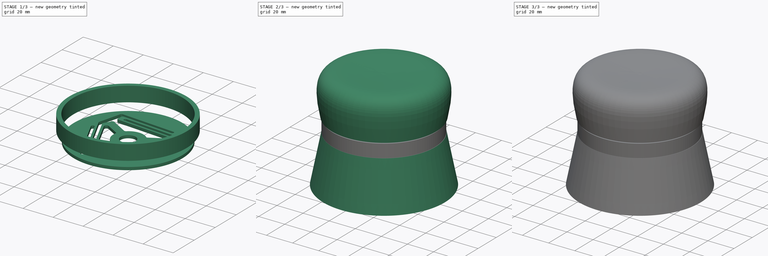
[diagram: build sequence overview — one tinted view per stage of 3, left to right]
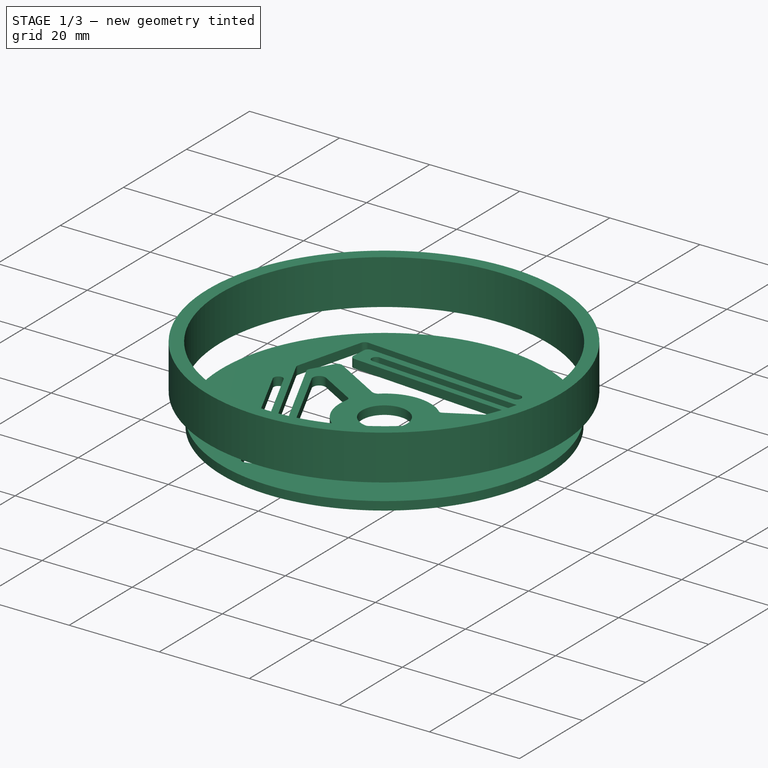
[diagram: stage 1 of 3 — iso view after this stage's code; geometry added in this stage tinted green]
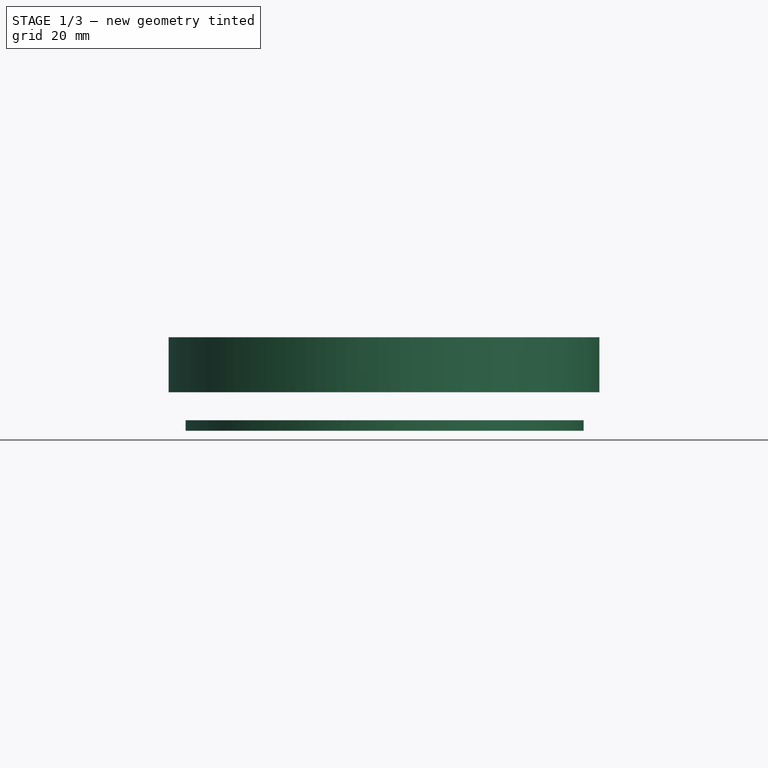
[diagram: stage 1 of 3 — front view after this stage's code; geometry added in this stage tinted green]
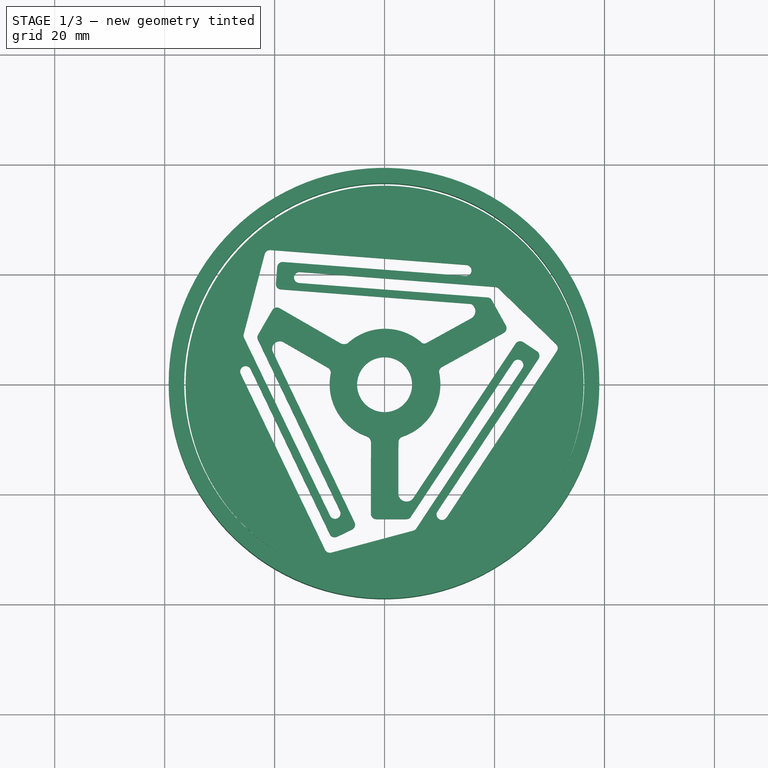
[diagram: stage 1 of 3 — top view after this stage's code; geometry added in this stage tinted green]
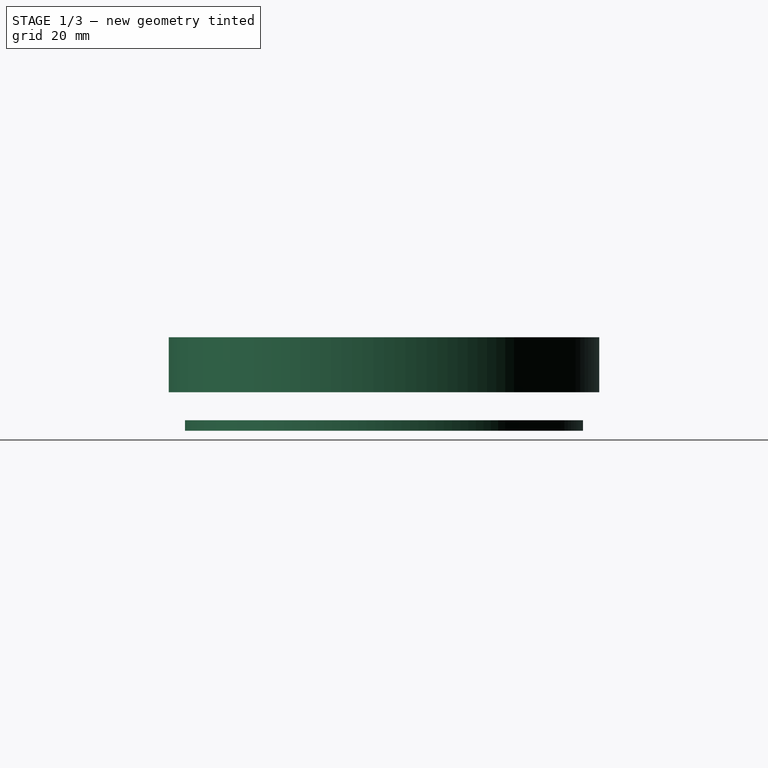
[diagram: stage 1 of 3 — right view after this stage's code; geometry added in this stage tinted green]
FCSTD DOCUMENT  (FreeCAD 0.19R24291 (Git))
Label: dimmer
License: All rights reserved
LicenseURL: http://en.wikipedia.org/wiki/All_rights_reserved
objects: Sketcher::SketchObject×6, Part::Feature×5, App::Part×5, PartDesign::Revolution×2, PartDesign::Pad×2, PartDesign::Body×2, PartDesign::Pocket×1, Part::FeaturePython×1
note: 24 computed .brp shape members not serialized (recipe doc carries the construction recipe); baked Part::Feature solids carry a one-line shape summary decoded from their .brp

FEATURE [PartDesign::Body] Body
  Group = -> [Sketch,Revolution,Sketch001,Pad,Sketch002,Pocket]
  Origin = -> Origin
  Tip = -> Pocket
FEATURE [Sketcher::SketchObject] Sketch003
  AttachmentOffset = pos=(0,0,-1) rot=(0,0,1;0rad)
  FullyConstrained = false
  MapMode = 5
  Placement = pos=(0,0,-1) rot=(0,0,1;0rad)
  Support = -> [XY_Plane001]
  sketch-geometry (2):
    g0: Circle CenterX=-0.073156 CenterY=0 CenterZ=0 NormalX=0 NormalY=0 NormalZ=1 AngleXU=0 Radius=36.3817
    g1: Circle CenterX=-0.106575 CenterY=0 CenterZ=0 NormalX=0 NormalY=0 NormalZ=1 AngleXU=0 Radius=39.1694
  constraints (2):
    c: PointOnObject(g0,g-1)
    c: PointOnObject(g1,g-1)
FEATURE [PartDesign::Pad] Pad001
  Direction = (1,1,1)
  Length = 10
  Length2 = 100
  Profile = -> Sketch003
  Refine = true
  Reversed = true
  Type = 0
FEATURE [PartDesign::Body] Body001
  Group = -> [Sketch003,Pad001,Sketch004,Sketch005,Revolution001]
  Origin = -> Origin001
  Tip = -> Revolution001
FEATURE [Part::FeaturePython] Clone  label="Orthoplanar_Spring001 (Solid)002"  # WARN: FeaturePython — macro-defined, semantics opaque (R4)
  AttacherType = Attacher::AttachEngine3D
  Fuse = false
  Placement = pos=(0,0,-18) rot=(0,0,1;0rad)
  Scale = (0.5,0.5,0.5)
FEATURE [Part::Feature] Part__Feature  label="COMPOUND"
  shape: bbox 14.4 x 14.58 x 18.62 mm, 223 faces, 5 solids (baked)
FEATURE [App::Part] EC12_Encoder_10mm_3pin  label="EC12 Encoder 10mm 3pin"
  Group = -> [Part__Feature]
  Origin = -> Origin002
  Placement = pos=(-0.24,-0.44,1.05) rot=(0,0,-1;1.5708rad)
FEATURE [Part::Feature] Part__Feature001  label="COMPOUND001"
  shape: bbox 4.815 x 2.215 x 4.115 mm, 246 faces, 5 solids (baked)
FEATURE [App::Part] SKRKAHE020__3DModel_STEP_56544  label="SKRKAHE020--3DModel-STEP-56544"
  Group = -> [Part__Feature001]
  Origin = -> Origin003
  Placement = pos=(16.47,-20.13,1.05) rot=(0.57735,0.57735,0.57735;2.0944rad)
FEATURE [Part::Feature] Part__Feature002  label="COMPOUND002"
  shape: bbox 8.99 x 4.35 x 7.955 mm, 689 faces, 42 solids (baked)
FEATURE [App::Part] TYPE_C_31_M_12  label="TYPE-C-31-M-12"
  Group = -> [Part__Feature002]
  Origin = -> Origin004
  Placement = pos=(-0.8,-32.05,1.05) rot=(1,0,0;1.5708rad)
FEATURE [Part::Feature] Part__Feature003  label="COMPOUND003"
  shape: bbox 4.815 x 2.215 x 4.115 mm, 246 faces, 5 solids (baked)
FEATURE [App::Part] SKRKAHE020__3DModel_STEP_56544001  label="SKRKAHE020--3DModel-STEP-56545"
  Group = -> [Part__Feature003]
  Origin = -> Origin005
  Placement = pos=(-10.084,-28.778,1.05) rot=(1,0,0;1.5708rad)
FEATURE [Part::Feature] Part__Feature004  label="PCB PCB"
  shape: bbox 68 x 68 x 1 mm, 50 faces (baked)
FEATURE [App::Part] PCB_1  label="PCB 1"
  Group = -> [EC12_Encoder_10mm_3pin,SKRKAHE020__3DModel_STEP_56544,TYPE_C_31_M_12,SKRKAHE020__3DModel_STEP_56544001,Part__Feature004]
  Origin = -> Origin006
  Placement = pos=(0,0,-13) rot=(0,0,1;0rad)
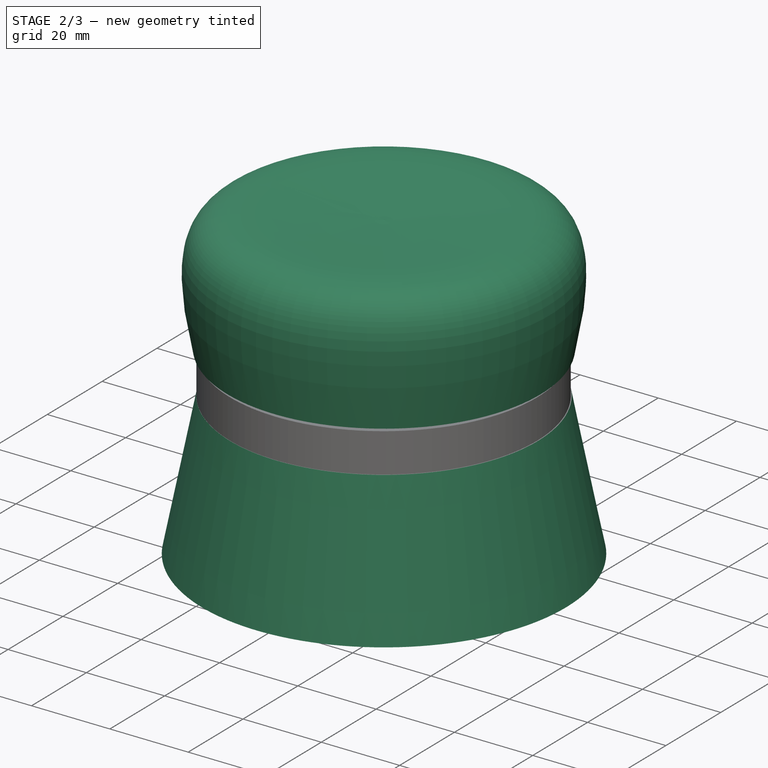
[diagram: stage 2 of 3 — iso view after this stage's code; geometry added in this stage tinted green]
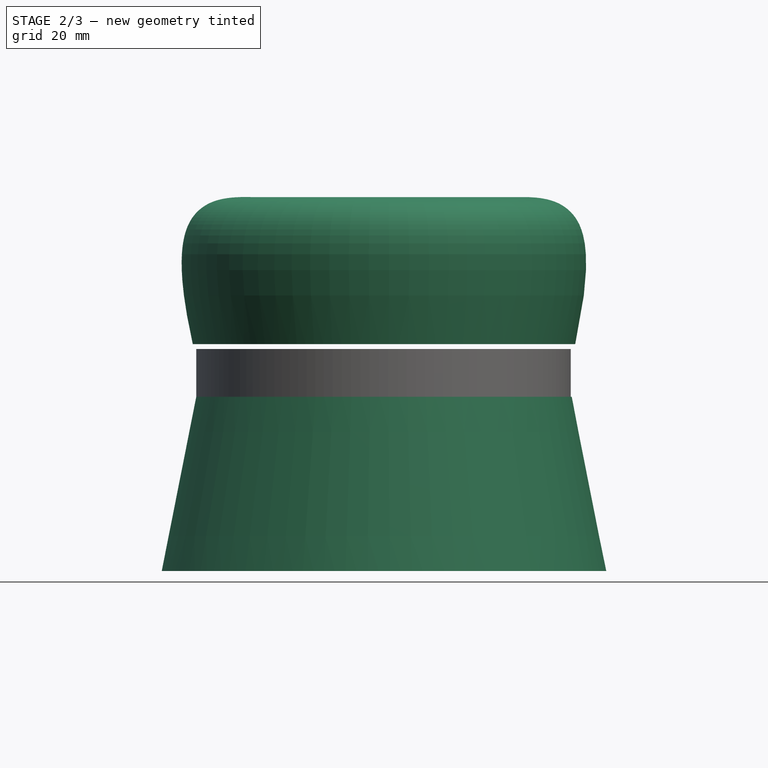
[diagram: stage 2 of 3 — front view after this stage's code; geometry added in this stage tinted green]
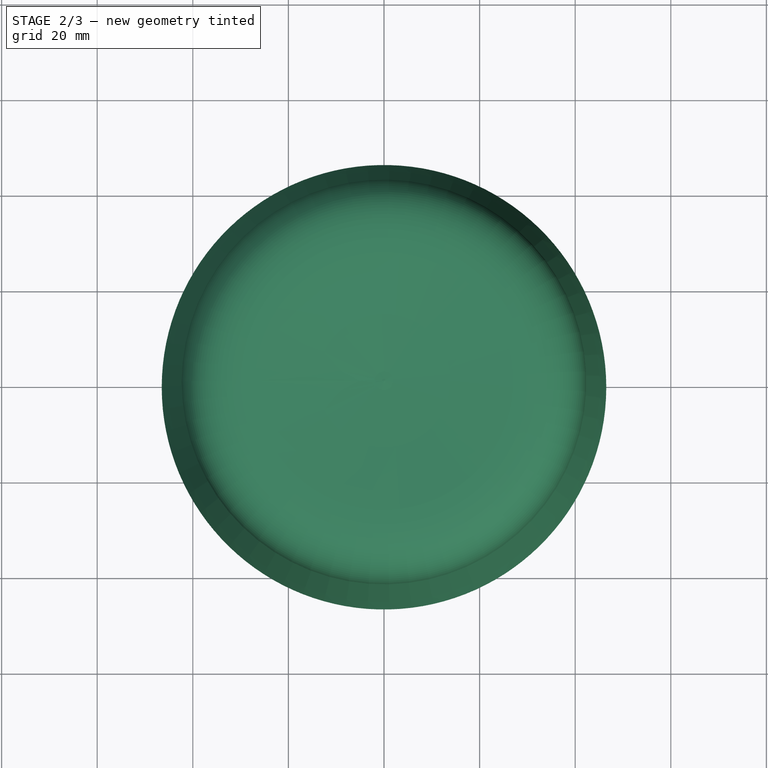
[diagram: stage 2 of 3 — top view after this stage's code; geometry added in this stage tinted green]
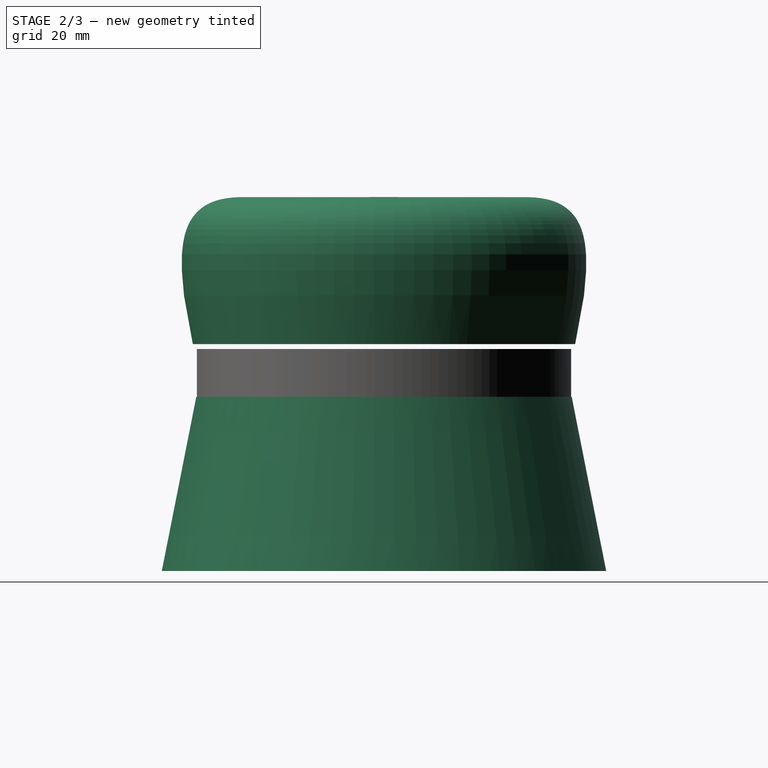
[diagram: stage 2 of 3 — right view after this stage's code; geometry added in this stage tinted green]
FEATURE [Sketcher::SketchObject] Sketch
  FullyConstrained = false
  MapMode = 5
  Placement = pos=(0,0,0) rot=(1,0,0;1.5708rad)
  Support = -> [XZ_Plane]
  sketch-geometry (26):
    g0: LineSegment StartX=0 StartY=29.5694 StartZ=0 EndX=0 EndY=26.5694 EndZ=0
    g1: LineSegment StartX=-40 StartY=0 StartZ=0 EndX=-37 EndY=0 EndZ=0
    g2-g7: Circle x6 (B-spline internal-alignment scaffolding for g8; pole/knot coordinates omitted)
    g8: BSplineCurve PolesCount=6 KnotsCount=4 Degree=3 IsPeriodic=0
    g9-g12: GeomPoint x4 (B-spline internal-alignment scaffolding for g8; pole/knot coordinates omitted)
    g13-g19: Circle x7 (B-spline internal-alignment scaffolding for g20; pole/knot coordinates omitted)
    g20: BSplineCurve PolesCount=7 KnotsCount=5 Degree=3 IsPeriodic=0
    g21-g25: GeomPoint x5 (B-spline internal-alignment scaffolding for g20; pole/knot coordinates omitted)
  constraints (18):
    c: PointOnObject(g1,g-1)
    c: PointOnObject(g0,g-2)
    c: Vertical(g0)
    c: Horizontal(g1)
    c: DistanceX(g1,g1) = 3
    c: DistanceY(g0,g0) = 3
    c: Weight(g2) = 1
    c: Equal(g2, g3-g7) x5
    c: InternalAlignment(g2-g7 -> g8) x6
    c: InternalAlignment(g9-g12 -> g8) x4
    c: Weight(g13) = 1
    c: Equal(g13, g14-g18) x5
    c: Coincident(g18,g0)
    c: Equal(g13,g19)
    c: Coincident(g20,g0)
    c: InternalAlignment(g13-g19 -> g20) x7
    c: InternalAlignment(g21-g25 -> g20) x5
    c: Coincident(g8,g0)
FEATURE [PartDesign::Revolution] Revolution
  Angle = 360
  Axis = (0,2e-16,1)
  Base = (0,0,0)
  Placement = pos=(0,0,0) rot=(1,0,0;1.5708rad)
  Profile = -> Sketch
  ReferenceAxis = -> Sketch [V_Axis]
  Refine = true
FEATURE [Sketcher::SketchObject] Sketch004
  FullyConstrained = true
  MapMode = 5
  Placement = pos=(0,0,-11) rot=(1,0,0;3.14159rad)
  Support = -> [Pad001]
FEATURE [Sketcher::SketchObject] Sketch005
  ExternalGeometry = -> [Pad001]
  FullyConstrained = false
  MapMode = 5
  Placement = pos=(0,0,0) rot=(1,0,0;1.5708rad)
  Support = -> [XZ_Plane001]
  sketch-geometry (4):
    g0: LineSegment StartX=-39.276 StartY=-11 StartZ=0 EndX=-46.4985 EndY=-47.4562 EndZ=0
    g1: LineSegment StartX=-46.4985 StartY=-47.4562 StartZ=0 EndX=-43.6774 EndY=-47.4562 EndZ=0
    g2: LineSegment StartX=-43.6774 StartY=-47.4562 StartZ=0 EndX=-36.4549 EndY=-11 EndZ=0
    g3: LineSegment StartX=-39.276 StartY=-11 StartZ=0 EndX=-36.4549 EndY=-11 EndZ=0
  constraints (8):
    c: Coincident(g0,g-3)
    c: Coincident(g1,g0)
    c: Horizontal(g1)
    c: Coincident(g2,g1)
    c: Coincident(g2,g-4)
    c: Coincident(g3,g0)
    c: Coincident(g3,g2)
    c: Equal(g3,g1)
FEATURE [PartDesign::Revolution] Revolution001
  Angle = 360
  Axis = (0,-2e-16,1)
  Base = (0,0,0)
  BaseFeature = -> Pad001
  Profile = -> Sketch005
  ReferenceAxis = -> Sketch005 [V_Axis]
  Refine = true
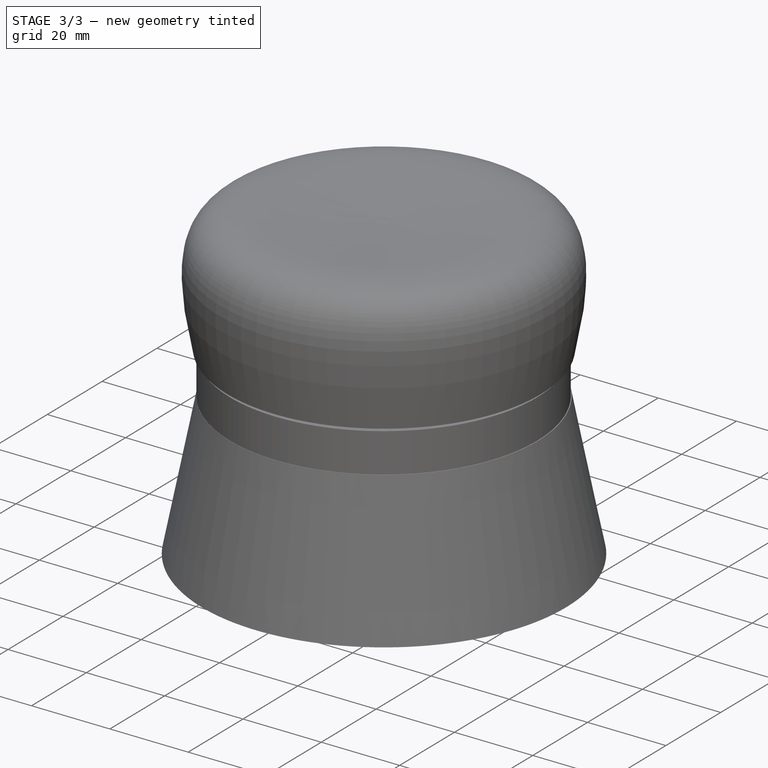
[diagram: stage 3 of 3 — iso view after this stage's code; geometry added in this stage tinted green]
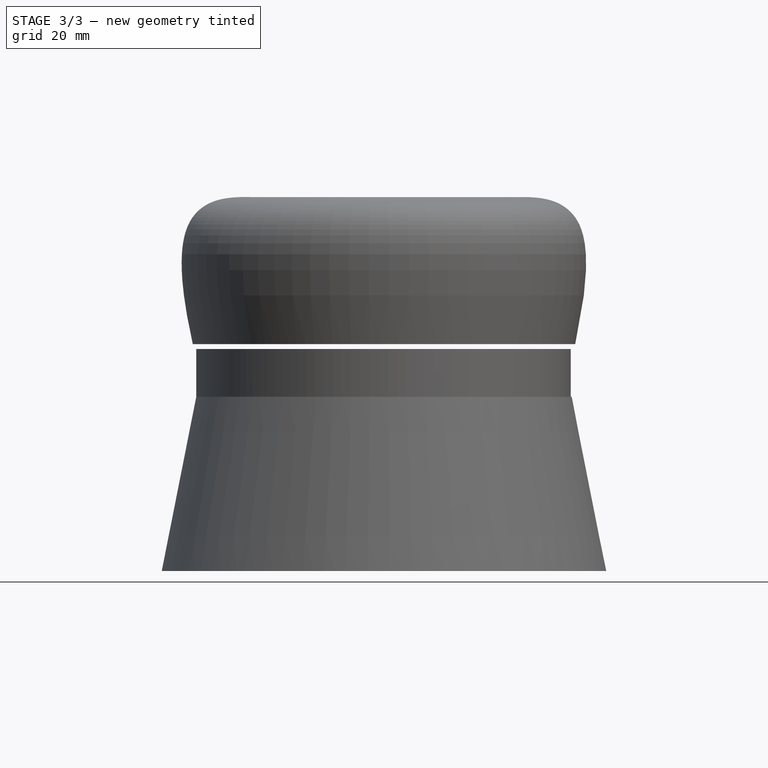
[diagram: stage 3 of 3 — front view after this stage's code; geometry added in this stage tinted green]
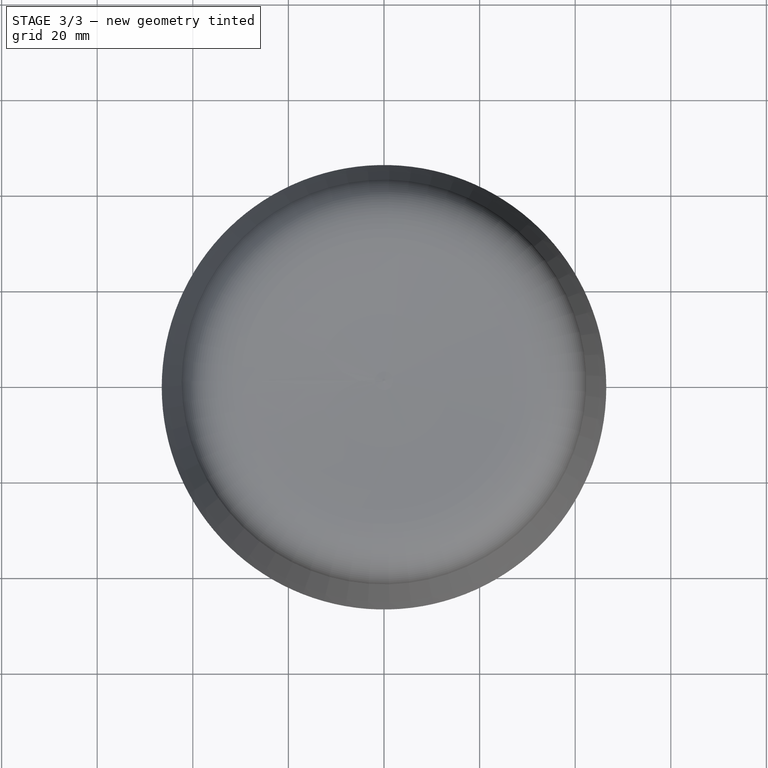
[diagram: stage 3 of 3 — top view after this stage's code; geometry added in this stage tinted green]
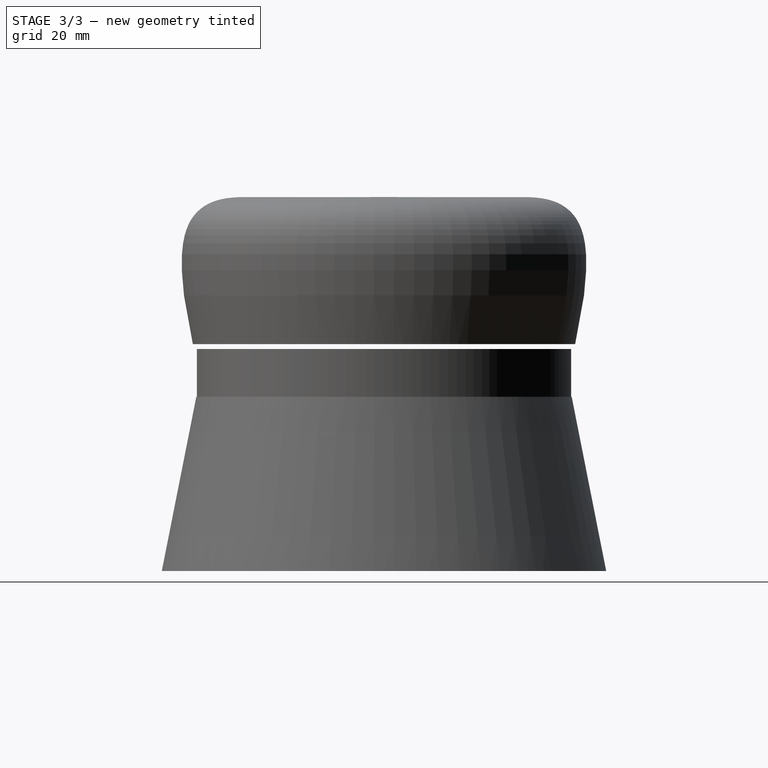
[diagram: stage 3 of 3 — right view after this stage's code; geometry added in this stage tinted green]
FEATURE [Sketcher::SketchObject] Sketch001
  FullyConstrained = true
  MapMode = 5
  Placement = pos=(0,0,0) rot=(1,0,0;3.14159rad)
  Support = -> [Revolution]
  sketch-geometry (1):
    g0: Circle CenterX=0 CenterY=0 CenterZ=0 NormalX=0 NormalY=0 NormalZ=1 AngleXU=0 Radius=7
  constraints (2):
    c: Coincident(g0,g-1)
    c: Radius(g0) = 7
FEATURE [PartDesign::Pad] Pad
  BaseFeature = -> Revolution
  Direction = (1,1,1)
  Length = 10
  Length2 = 100
  Placement = pos=(0,0,0) rot=(1,0,0;1.5708rad)
  Profile = -> Sketch001
  Refine = true
  Type = 3
  UpToFace = -> Revolution [Face2]
FEATURE [Sketcher::SketchObject] Sketch002
  FullyConstrained = true
  MapMode = 5
  Placement = pos=(0,0,0) rot=(1,0,0;3.14159rad)
  Support = -> [Pad]
  sketch-geometry (2):
    g0: ArcOfCircle CenterX=0 CenterY=0 CenterZ=0 NormalX=0 NormalY=0 NormalZ=1 AngleXU=0 Radius=3 StartAngle=2.61799 EndAngle=6.80678
    g1: LineSegment StartX=-2.59808 StartY=1.5 StartZ=0 EndX=2.59808 EndY=1.5 EndZ=0
  constraints (6):
    c: Coincident(g0,g-1)
    c: Coincident(g1,g0)
    c: Coincident(g1,g0)
    c: Horizontal(g1)
    c: DistanceY(g0,g0) = 1.5
    c: Diameter(g0) = 6
FEATURE [PartDesign::Pocket] Pocket
  BaseFeature = -> Pad
  Length = 26
  Length2 = 100
  Placement = pos=(0,0,0) rot=(1,0,0;1.5708rad)
  Profile = -> Sketch002
  Refine = true
  Type = 0
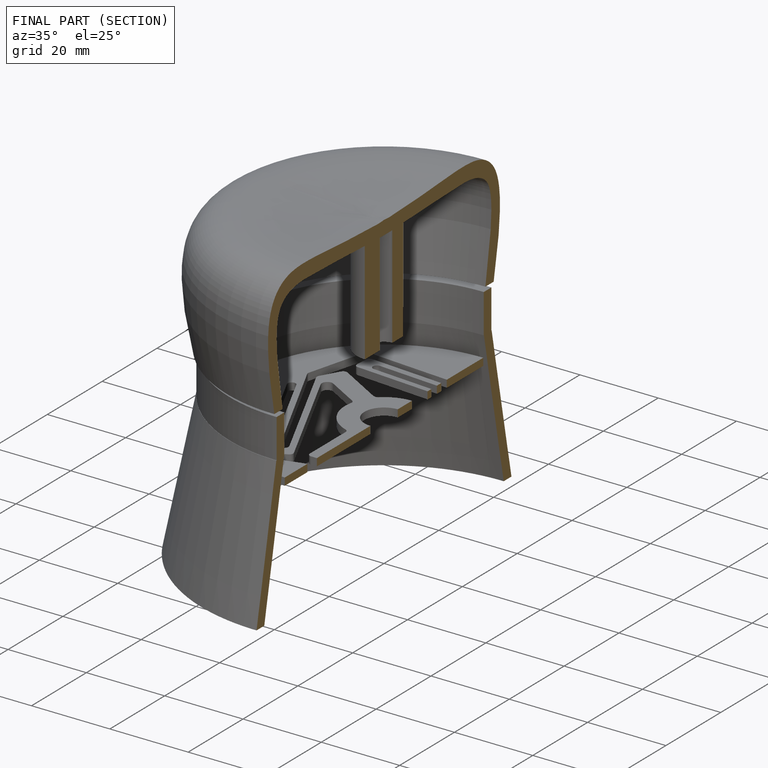
[diagram: finished part — half-section view (interior)]
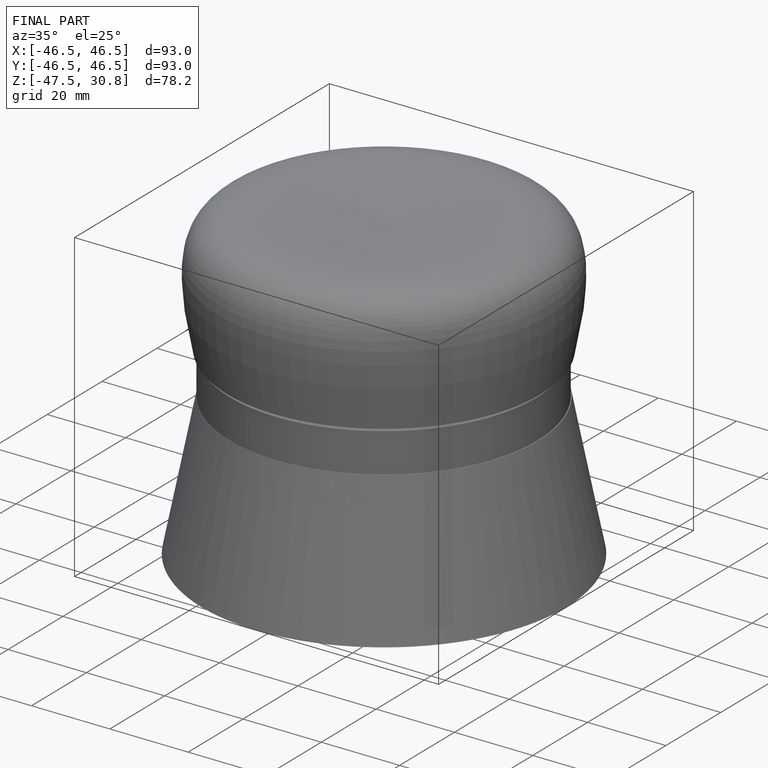
[diagram: finished part — iso view with bounding-box wireframe]
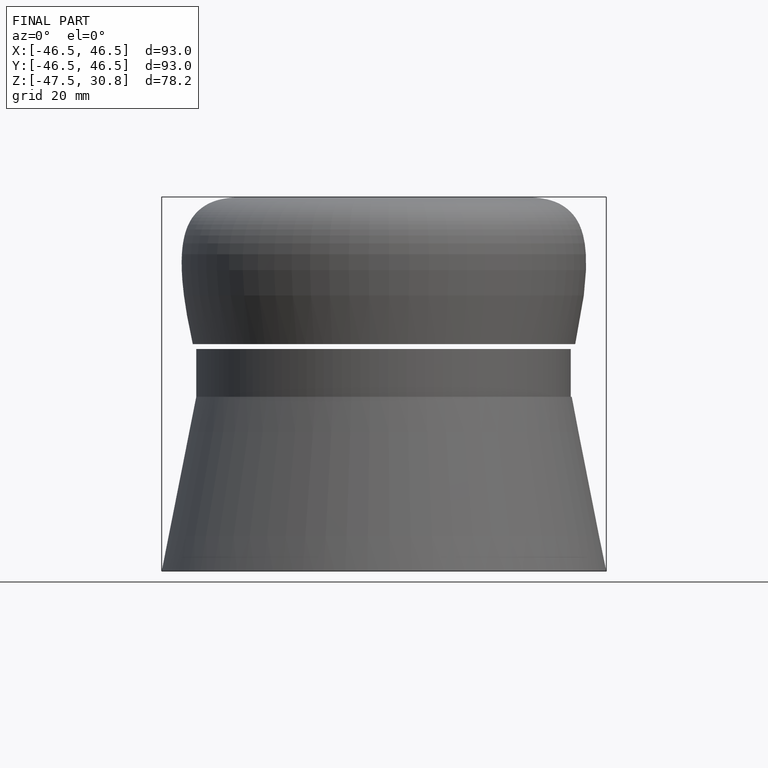
[diagram: finished part — front view with bounding-box wireframe]
